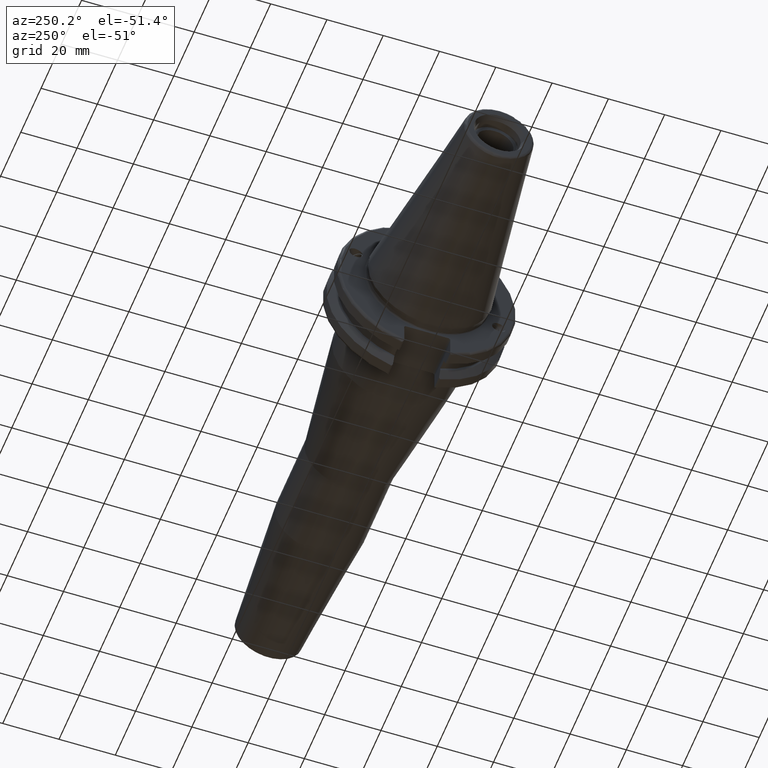
[diagram: clean part render]
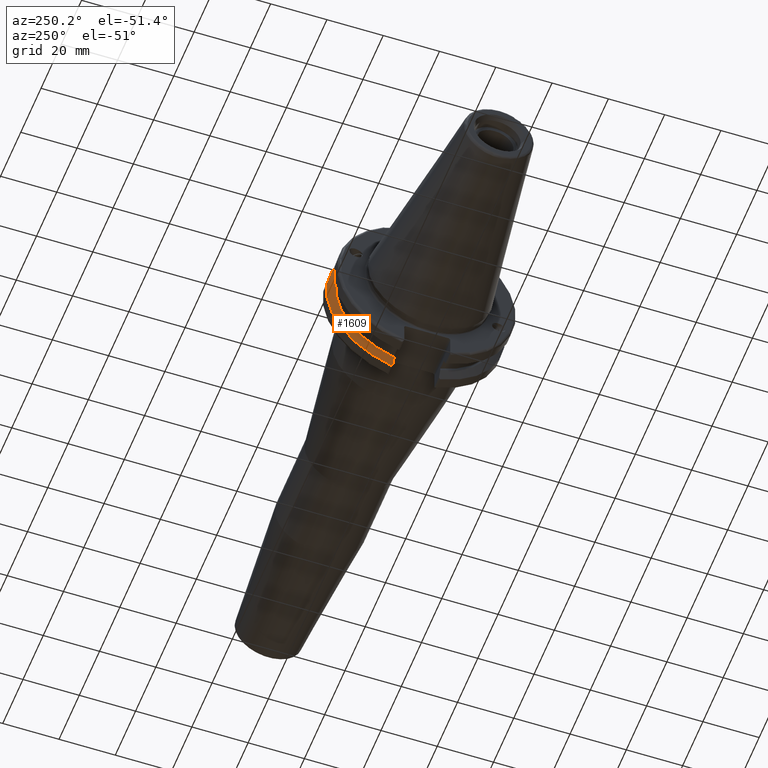
[diagram: same view with one face highlighted and labeled with its STEP entity id]
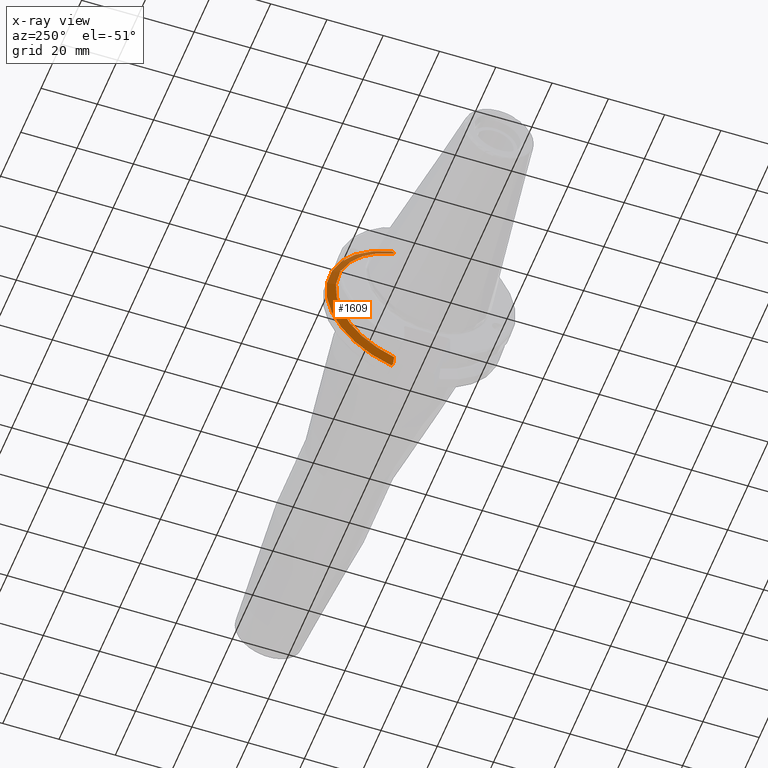
[diagram: x-ray of the same camera — body ghosted, the highlighted face saturated]
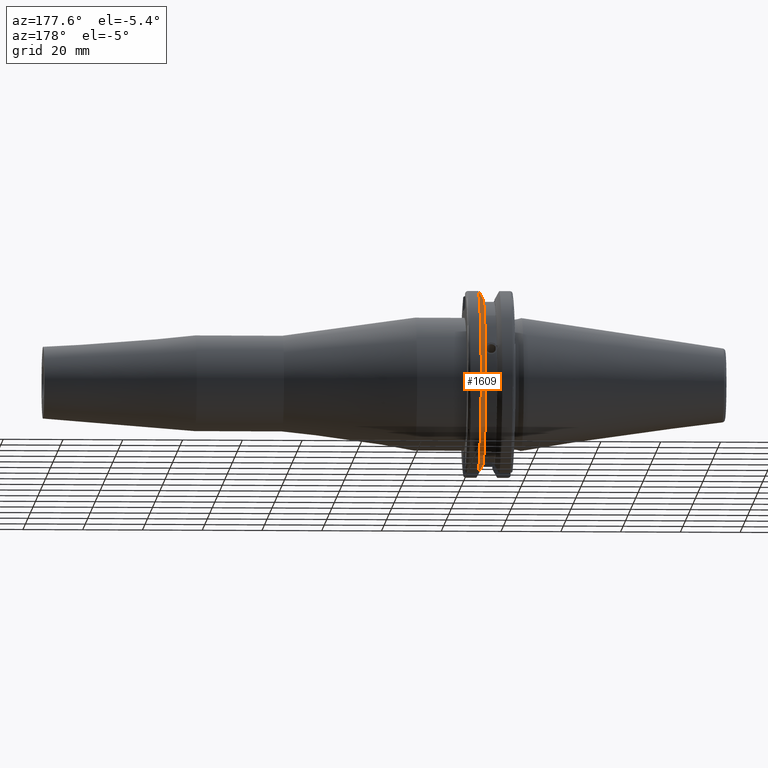
[diagram: same view with one face highlighted and labeled with its STEP entity id]
A machine part, auxiliary view. The second image highlights one B-rep face of the part: STEP entity #1609.
The next image is the same camera in x-ray: the body ghosted, the highlighted face saturated — about 4% of this face is hidden behind the body in this view.
A second angle (auxiliary view) of the same face is appended — the face is thin or edge-on in the first view.
In plain terms, the highlighted conical surface has half-angle 60 deg.
Its self-contained STEP definition (entity closure, byte-faithful):
#29=(
BOUNDED_CURVE()
B_SPLINE_CURVE(2,(#2818,#2819,#2820),.UNSPECIFIED.,.F.,.F.)
B_SPLINE_CURVE_WITH_KNOTS((3,3),(0.329353533631226,0.393258405001025),
 .UNSPECIFIED.)
CURVE()
GEOMETRIC_REPRESENTATION_ITEM()
RATIONAL_B_SPLINE_CURVE((1.00047644010577,1.00028444218285,1.))
REPRESENTATION_ITEM('')
);
#30=(
BOUNDED_CURVE()
B_SPLINE_CURVE(2,(#2834,#2835,#2836),.UNSPECIFIED.,.F.,.F.)
B_SPLINE_CURVE_WITH_KNOTS((3,3),(0.0550586467393769,0.331607789535852),
 .UNSPECIFIED.)
CURVE()
GEOMETRIC_REPRESENTATION_ITEM()
RATIONAL_B_SPLINE_CURVE((1.00031614444922,1.00095203903643,1.))
REPRESENTATION_ITEM('')
);
#35=(
BOUNDED_CURVE()
B_SPLINE_CURVE(2,(#3019,#3020,#3021),.UNSPECIFIED.,.F.,.F.)
B_SPLINE_CURVE_WITH_KNOTS((3,3),(0.,0.276549142795274),.UNSPECIFIED.)
CURVE()
GEOMETRIC_REPRESENTATION_ITEM()
RATIONAL_B_SPLINE_CURVE((1.,1.00095203903599,1.00031614444907))
REPRESENTATION_ITEM('')
);
#36=(
BOUNDED_CURVE()
B_SPLINE_CURVE(2,(#3036,#3037,#3038),.UNSPECIFIED.,.F.,.F.)
B_SPLINE_CURVE_WITH_KNOTS((3,3),(0.,0.0639048713675655),.UNSPECIFIED.)
CURVE()
GEOMETRIC_REPRESENTATION_ITEM()
RATIONAL_B_SPLINE_CURVE((1.,1.00028444218286,1.00047644010578))
REPRESENTATION_ITEM('')
);
#46=B_SPLINE_CURVE_WITH_KNOTS('',3,(#2621,#2622,#2623,#2624,#2625,#2626,
#2627,#2628),.UNSPECIFIED.,.F.,.F.,(4,2,2,4),(0.451995700189023,0.464547828547662,
0.504528771685167,0.544509714822673),.UNSPECIFIED.);
#50=B_SPLINE_CURVE_WITH_KNOTS('',3,(#2683,#2684,#2685,#2686,#2687,#2688,
#2689,#2690),.UNSPECIFIED.,.F.,.F.,(4,2,2,4),(0.544509714822673,0.584490657960178,
0.624471601097683,0.637023729456323),.UNSPECIFIED.);
#255=FACE_OUTER_BOUND('',#362,.T.);
#362=EDGE_LOOP('',(#1464,#1465,#1466,#1467,#1468,#1469,#1470,#1471,#1472));
#611=CIRCLE('',#1738,28.9593772964944);
#634=CIRCLE('',#1796,31.75);
#641=CIRCLE('',#1811,28.9593772964944);
#711=VERTEX_POINT('',#2618);
#712=VERTEX_POINT('',#2620);
#719=VERTEX_POINT('',#2681);
#728=VERTEX_POINT('',#2723);
#755=VERTEX_POINT('',#2815);
#756=VERTEX_POINT('',#2817);
#791=VERTEX_POINT('',#3016);
#792=VERTEX_POINT('',#3018);
#795=VERTEX_POINT('',#3034);
#898=EDGE_CURVE('',#712,#711,#46,.T.);
#906=EDGE_CURVE('',#711,#719,#50,.T.);
#918=EDGE_CURVE('',#728,#712,#611,.T.);
#951=EDGE_CURVE('',#755,#756,#29,.T.);
#957=EDGE_CURVE('',#755,#728,#30,.T.);
#1012=EDGE_CURVE('',#792,#791,#35,.T.);
#1020=EDGE_CURVE('',#795,#791,#36,.T.);
#1021=EDGE_CURVE('',#756,#795,#634,.T.);
#1031=EDGE_CURVE('',#719,#792,#641,.T.);
#1464=ORIENTED_EDGE('',*,*,#898,.T.);
#1465=ORIENTED_EDGE('',*,*,#906,.T.);
#1466=ORIENTED_EDGE('',*,*,#1031,.T.);
#1467=ORIENTED_EDGE('',*,*,#1012,.T.);
#1468=ORIENTED_EDGE('',*,*,#1020,.F.);
#1469=ORIENTED_EDGE('',*,*,#1021,.F.);
#1470=ORIENTED_EDGE('',*,*,#951,.F.);
#1471=ORIENTED_EDGE('',*,*,#957,.T.);
#1472=ORIENTED_EDGE('',*,*,#918,.T.);
#1524=CONICAL_SURFACE('',#1810,30.3546886482472,1.0471975511966);
#1609=ADVANCED_FACE('',(#255),#1524,.T.);
#1738=AXIS2_PLACEMENT_3D('',#2724,#2057,#2058);
#1796=AXIS2_PLACEMENT_3D('',#3040,#2228,#2229);
#1810=AXIS2_PLACEMENT_3D('',#3060,#2259,#2260);
#1811=AXIS2_PLACEMENT_3D('',#3061,#2261,#2262);
#2057=DIRECTION('center_axis',(1.,0.,0.));
#2058=DIRECTION('ref_axis',(0.,0.,-1.));
#2228=DIRECTION('center_axis',(1.,0.,0.));
#2229=DIRECTION('ref_axis',(0.,0.,-1.));
#2259=DIRECTION('center_axis',(1.,0.,0.));
#2260=DIRECTION('ref_axis',(0.,1.,0.));
#2261=DIRECTION('center_axis',(1.,0.,0.));
#2262=DIRECTION('ref_axis',(0.,0.,-1.));
#2618=CARTESIAN_POINT('',(13.2341,27.51401829017,10.0142836826778));
#2620=CARTESIAN_POINT('',(13.0491,27.4956274489925,9.09043478536244));
#2621=CARTESIAN_POINT('Ctrl Pts',(13.0491,27.4956274489925,9.09043478536245));
#2622=CARTESIAN_POINT('Ctrl Pts',(13.0632204071996,27.5087667900418,9.12860597076217));
#2623=CARTESIAN_POINT('Ctrl Pts',(13.0766929817857,27.5206055003513,9.16696618806877));
#2624=CARTESIAN_POINT('Ctrl Pts',(13.130081441159,27.5642934663232,9.32791534028656));
#2625=CARTESIAN_POINT('Ctrl Pts',(13.1682197084175,27.5867382255984,9.46717946402648));
#2626=CARTESIAN_POINT('Ctrl Pts',(13.2204106446058,27.5847569104122,9.74771639360672));
#2627=CARTESIAN_POINT('Ctrl Pts',(13.2341,27.559599249844,9.8890510252165));
#2628=CARTESIAN_POINT('Ctrl Pts',(13.2341,27.51401829017,10.0142836826778));
#2681=CARTESIAN_POINT('',(13.0491,26.9060914640648,10.7101715919071));
#2683=CARTESIAN_POINT('Ctrl Pts',(13.2341,27.51401829017,10.0142836826778));
#2684=CARTESIAN_POINT('Ctrl Pts',(13.2341,27.4684373304961,10.139516340139));
#2685=CARTESIAN_POINT('Ctrl Pts',(13.2204106446058,27.3968610665578,10.2639559818059));
#2686=CARTESIAN_POINT('Ctrl Pts',(13.1682197084175,27.2180531796526,10.4801333026531));
#2687=CARTESIAN_POINT('Ctrl Pts',(13.130081441159,27.1113422433189,10.5723885976054));
#2688=CARTESIAN_POINT('Ctrl Pts',(13.0766929817857,26.9744191989197,10.6676007180674));
#2689=CARTESIAN_POINT('Ctrl Pts',(13.0632204071996,26.9406927482839,10.6893765730703));
#2690=CARTESIAN_POINT('Ctrl Pts',(13.0491,26.9060914640648,10.7101715919071));
#2723=CARTESIAN_POINT('',(13.0491,8.19,-27.7771386827498));
#2724=CARTESIAN_POINT('Origin',(13.0491,0.,0.));
#2815=CARTESIAN_POINT('',(14.3815146964874,8.19,-30.1755016258903));
#2817=CARTESIAN_POINT('',(14.6602667690756,8.67204822802685,-30.5427254764662));
#2818=CARTESIAN_POINT('Ctrl Pts',(14.3815146964874,8.19,-30.1755016258903));
#2819=CARTESIAN_POINT('Ctrl Pts',(14.5192085187884,8.42917748263464,-30.3577067892692));
#2820=CARTESIAN_POINT('Ctrl Pts',(14.6602667690756,8.67204822802686,-30.5427254764662));
#2834=CARTESIAN_POINT('Ctrl Pts',(14.3815146964874,8.18999999999999,-30.1755016258903));
#2835=CARTESIAN_POINT('Ctrl Pts',(13.687736438474,8.19,-28.9303689539668));
#2836=CARTESIAN_POINT('Ctrl Pts',(13.0491,8.19,-27.7771386827498));
#3016=CARTESIAN_POINT('',(14.3815146964874,8.19,30.1755016258903));
#3018=CARTESIAN_POINT('',(13.0491,8.19,27.7771386827498));
#3019=CARTESIAN_POINT('Ctrl Pts',(13.0491,8.19,27.7771386827498));
#3020=CARTESIAN_POINT('Ctrl Pts',(13.687736438489,8.19,28.9303689539938));
#3021=CARTESIAN_POINT('Ctrl Pts',(14.3815146964874,8.19,30.1755016258903));
#3034=CARTESIAN_POINT('',(14.6602667690756,8.67204822802685,30.5427254764662));
#3036=CARTESIAN_POINT('Ctrl Pts',(14.6602667690756,8.67204822802687,30.5427254764662));
#3037=CARTESIAN_POINT('Ctrl Pts',(14.5192085187837,8.42917748262644,30.357706789263));
#3038=CARTESIAN_POINT('Ctrl Pts',(14.3815146964874,8.19,30.1755016258903));
#3040=CARTESIAN_POINT('Origin',(14.6602667690756,0.,0.));
#3060=CARTESIAN_POINT('Origin',(13.8546833845378,0.,0.));
#3061=CARTESIAN_POINT('Origin',(13.0491,0.,0.));